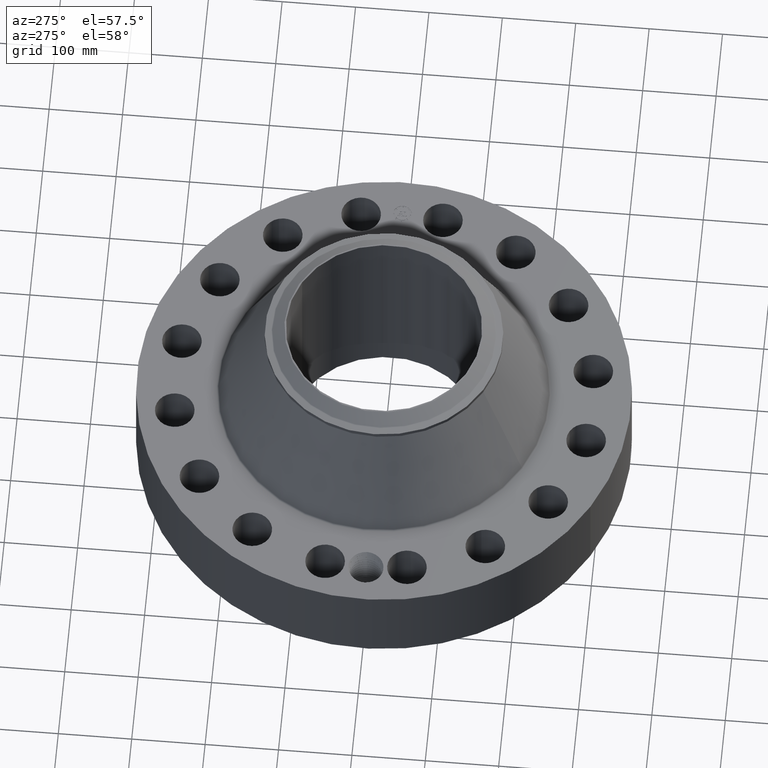
[diagram: clean part render]
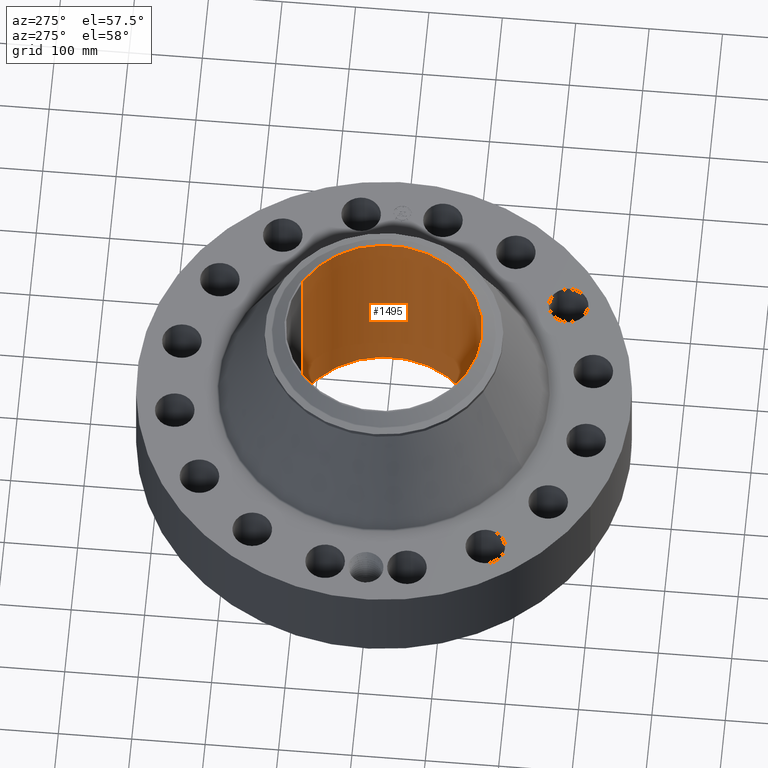
[diagram: same view with one face highlighted and labeled with its STEP entity id]
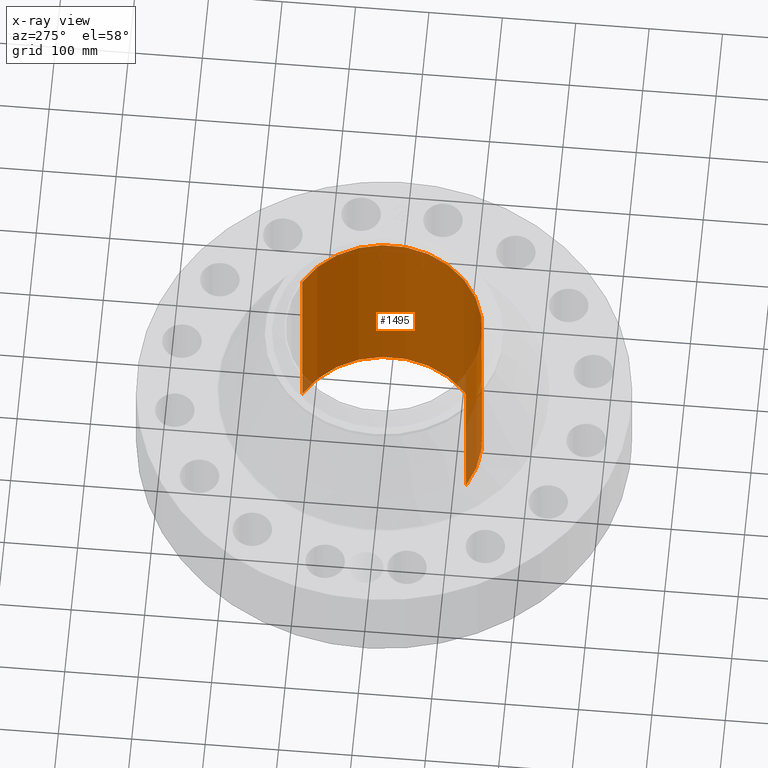
[diagram: x-ray of the same camera — body ghosted, the highlighted face saturated]
A machine part, auxiliary view. The second image highlights one B-rep face of the part: STEP entity #1495.
The next image is the same camera in x-ray: the body ghosted, the highlighted face saturated — about 6% of this face is hidden behind the body in this view.
In plain terms, the highlighted cylindrical surface (partial cylindrical patch) has radius 133.35 mm, axis along (0, 0, -1).
Its self-contained STEP definition (entity closure, byte-faithful):
#262=AXIS2_PLACEMENT_3D('Circle Axis2P3D',#260,#261,$) ;
#1426=AXIS2_PLACEMENT_3D('Cylinder Axis2P3D',#1423,#1424,#1425) ;
#1430=AXIS2_PLACEMENT_3D('Circle Axis2P3D',#1428,#1429,$) ;
#260=CARTESIAN_POINT('Axis2P3D Location',(0.,0.,0.250000000001)) ;
#264=CARTESIAN_POINT('Vertex',(2.51698407768,4.60730844994,0.250000000001)) ;
#266=CARTESIAN_POINT('Vertex',(-2.51698407768,-4.60730844994,0.250000000001)) ;
#1423=CARTESIAN_POINT('Axis2P3D Location',(0.,0.,5.81000000002)) ;
#1428=CARTESIAN_POINT('Axis2P3D Location',(0.,0.,11.37)) ;
#1432=CARTESIAN_POINT('Vertex',(2.51698407768,4.60730844994,11.37)) ;
#1434=CARTESIAN_POINT('Vertex',(-2.51698407768,-4.60730844994,11.37)) ;
#1437=CARTESIAN_POINT('Line Origine',(2.51698407768,4.60730844994,5.81000000002)) ;
#1442=CARTESIAN_POINT('Line Origine',(-2.51698407768,-4.60730844994,5.81000000002)) ;
#1454=CARTESIAN_POINT('Control Point',(0.219395640473,-5.24541376377,0.820143615352)) ;
#1455=CARTESIAN_POINT('Control Point',(0.206921698235,-5.24593550117,0.797310217243)) ;
#1456=CARTESIAN_POINT('Control Point',(0.191478146113,-5.24654430133,0.77610113525)) ;
#1457=CARTESIAN_POINT('Control Point',(0.173344922535,-5.24719312923,0.757029429671)) ;
#1458=CARTESIAN_POINT('Control Point',(0.112134746705,-5.2490697879,0.707549621304)) ;
#1459=CARTESIAN_POINT('Control Point',(0.0349787277108,-5.25028904707,0.684025719484)) ;
#1460=CARTESIAN_POINT('Control Point',(-0.0195636538074,-5.250380106,0.682387718006)) ;
#1461=CARTESIAN_POINT('Control Point',(-0.124150007089,-5.24903795304,0.707531778976)) ;
#1462=CARTESIAN_POINT('Control Point',(-0.203195489012,-5.24626006781,0.780447102239)) ;
#1463=CARTESIAN_POINT('Control Point',(-0.232171316683,-5.24489253263,0.826664248061)) ;
#1464=CARTESIAN_POINT('Control Point',(-0.255833979322,-5.24376685505,0.904819566547)) ;
#1465=CARTESIAN_POINT('Control Point',(-0.248294345153,-5.24412522645,0.984205743591)) ;
#1466=CARTESIAN_POINT('Control Point',(-0.242060293615,-5.24442589626,1.01078676372)) ;
#1467=CARTESIAN_POINT('Control Point',(-0.232322583638,-5.24487307907,1.03619377391)) ;
#1468=CARTESIAN_POINT('Control Point',(-0.219395640473,-5.24541376377,1.05985638466)) ;
#1469=CARTESIAN_POINT('Vertex',(0.219395640473,-5.24541376377,0.820143615352)) ;
#1471=CARTESIAN_POINT('Vertex',(-0.219395640473,-5.24541376377,1.05985638466)) ;
#1475=CARTESIAN_POINT('Control Point',(-0.219395640473,-5.24541376377,1.05985638466)) ;
#1476=CARTESIAN_POINT('Control Point',(-0.206921698233,-5.24593550117,1.08268978277)) ;
#1477=CARTESIAN_POINT('Control Point',(-0.191478146108,-5.24654430133,1.10389886476)) ;
#1478=CARTESIAN_POINT('Control Point',(-0.173344922538,-5.24719312923,1.12297057034)) ;
#1479=CARTESIAN_POINT('Control Point',(-0.112134746709,-5.2490697879,1.1724503787)) ;
#1480=CARTESIAN_POINT('Control Point',(-0.0349787277181,-5.25028904707,1.19597428052)) ;
#1481=CARTESIAN_POINT('Control Point',(0.0195636538254,-5.250380106,1.197612282)) ;
#1482=CARTESIAN_POINT('Control Point',(0.124150007079,-5.24903795304,1.17246822103)) ;
#1483=CARTESIAN_POINT('Control Point',(0.203195488987,-5.24626006781,1.09955289779)) ;
#1484=CARTESIAN_POINT('Control Point',(0.232171316696,-5.24489253263,1.05333575191)) ;
#1485=CARTESIAN_POINT('Control Point',(0.255833979317,-5.24376685505,0.975180433449)) ;
#1486=CARTESIAN_POINT('Control Point',(0.248294345155,-5.24412522645,0.895794256436)) ;
#1487=CARTESIAN_POINT('Control Point',(0.242060293607,-5.24442589626,0.86921323627)) ;
#1488=CARTESIAN_POINT('Control Point',(0.232322583633,-5.24487307907,0.843806226084)) ;
#1489=CARTESIAN_POINT('Control Point',(0.219395640473,-5.24541376377,0.820143615352)) ;
#261=DIRECTION('Axis2P3D Direction',(0.,0.,-0.0393700787402)) ;
#1424=DIRECTION('Axis2P3D Direction',(0.,0.,-0.0393700787402)) ;
#1425=DIRECTION('Axis2P3D XDirection',(-0.0188750212049,-0.0345504945626,0.)) ;
#1429=DIRECTION('Axis2P3D Direction',(0.,0.,-0.0393700787402)) ;
#1438=DIRECTION('Vector Direction',(0.,0.,-0.0393700787402)) ;
#1443=DIRECTION('Vector Direction',(0.,0.,-0.0393700787402)) ;
#1439=VECTOR('Line Direction',#1438,0.0393700787402) ;
#1444=VECTOR('Line Direction',#1443,0.0393700787402) ;
#1448=ORIENTED_EDGE('',*,*,#1436,.F.) ;
#1449=ORIENTED_EDGE('',*,*,#1441,.T.) ;
#1450=ORIENTED_EDGE('',*,*,#268,.T.) ;
#1451=ORIENTED_EDGE('',*,*,#1446,.F.) ;
#1492=ORIENTED_EDGE('',*,*,#1473,.F.) ;
#1493=ORIENTED_EDGE('',*,*,#1490,.F.) ;
#1494=FACE_BOUND('',#1491,.T.) ;
#1495=ADVANCED_FACE('PartBody',(#1452,#1494),#1427,.F.) ;
#1453=B_SPLINE_CURVE_WITH_KNOTS('',5,(#1454,#1455,#1456,#1457,#1458,#1459,#1460,#1461,#1462,#1463,#1464,#1465,#1466,#1467,#1468),.UNSPECIFIED.,.F.,.U.,(6,3,3,3,6),(0.,4.6739986323,14.0221990978,23.3721919489,28.2159304812),.UNSPECIFIED.) ;
#1474=B_SPLINE_CURVE_WITH_KNOTS('',5,(#1475,#1476,#1477,#1478,#1479,#1480,#1481,#1482,#1483,#1484,#1485,#1486,#1487,#1488,#1489),.UNSPECIFIED.,.F.,.U.,(6,3,3,3,6),(0.,4.67399863302,14.0221990974,23.3721919452,28.2159304754),.UNSPECIFIED.) ;
#263=CIRCLE('generated circle',#262,5.25000000002) ;
#1431=CIRCLE('generated circle',#1430,5.25000000002) ;
#1427=CYLINDRICAL_SURFACE('generated cylinder',#1426,5.25000000002) ;
#268=EDGE_CURVE('',#265,#267,#263,.T.) ;
#1436=EDGE_CURVE('',#1433,#1435,#1431,.T.) ;
#1441=EDGE_CURVE('',#1433,#265,#1440,.T.) ;
#1446=EDGE_CURVE('',#1435,#267,#1445,.T.) ;
#1473=EDGE_CURVE('',#1470,#1472,#1453,.T.) ;
#1490=EDGE_CURVE('',#1472,#1470,#1474,.T.) ;
#1447=EDGE_LOOP('',(#1448,#1449,#1450,#1451)) ;
#1491=EDGE_LOOP('',(#1492,#1493)) ;
#1452=FACE_OUTER_BOUND('',#1447,.T.) ;
#1440=LINE('Line',#1437,#1439) ;
#1445=LINE('Line',#1442,#1444) ;
#265=VERTEX_POINT('',#264) ;
#267=VERTEX_POINT('',#266) ;
#1433=VERTEX_POINT('',#1432) ;
#1435=VERTEX_POINT('',#1434) ;
#1470=VERTEX_POINT('',#1469) ;
#1472=VERTEX_POINT('',#1471) ;